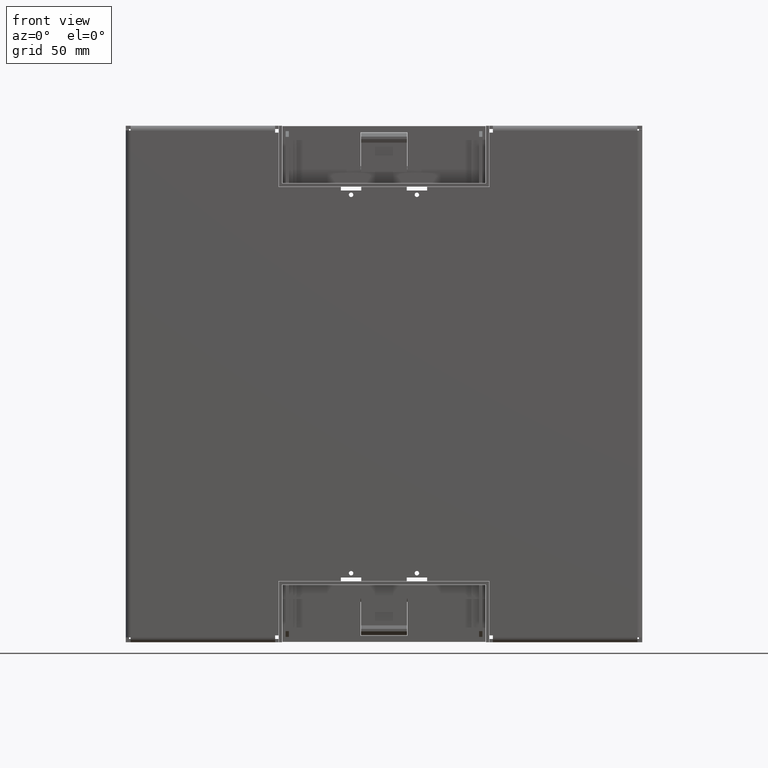
[diagram: clean part render]
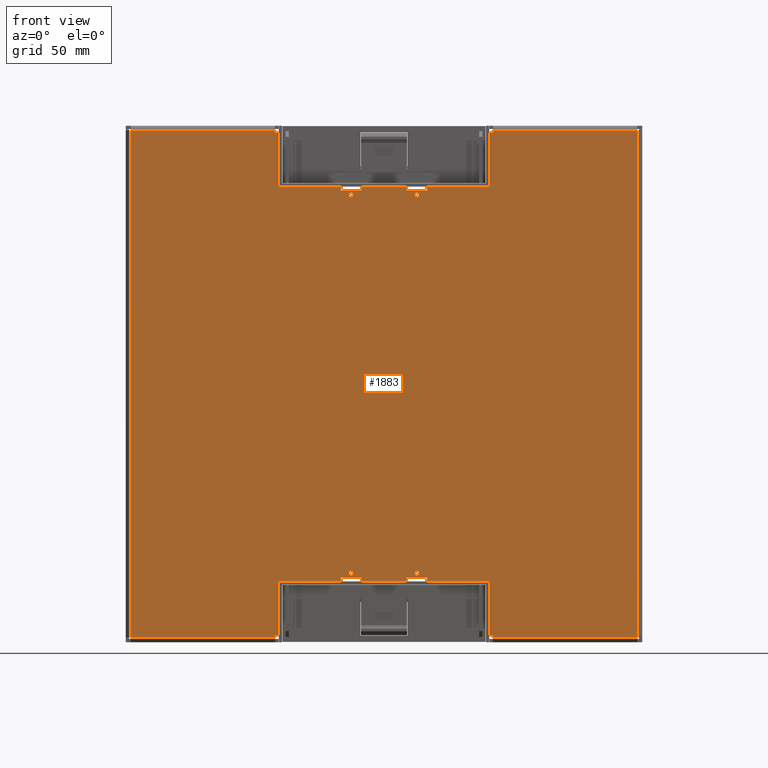
[diagram: same view with one face highlighted and labeled with its STEP entity id]
A machine part, front view. The second image highlights one B-rep face of the part: STEP entity #1883.
In plain terms, the highlighted planar face has unit normal (0, 1, 0).
Its self-contained STEP definition (entity closure, byte-faithful):
#300=DIRECTION('',(-1.E0,0.E0,0.E0));
#301=VECTOR('',#300,2.05E0);
#302=CARTESIAN_POINT('',(6.62E1,0.E0,-1.528E2));
#303=LINE('',#302,#301);
#304=DIRECTION('',(0.E0,0.E0,-1.E0));
#305=VECTOR('',#304,3.3E1);
#306=CARTESIAN_POINT('',(-6.415E1,0.E0,-1.198E2));
#307=LINE('',#306,#305);
#308=DIRECTION('',(-1.E0,0.E0,0.E0));
#309=VECTOR('',#308,2.05E0);
#310=CARTESIAN_POINT('',(-6.415E1,0.E0,-1.528E2));
#311=LINE('',#310,#309);
#312=DIRECTION('',(0.E0,0.E0,-1.E0));
#313=VECTOR('',#312,1.2E0);
#314=CARTESIAN_POINT('',(-6.62E1,0.E0,-1.528E2));
#315=LINE('',#314,#313);
#316=DIRECTION('',(0.E0,0.E0,-1.E0));
#317=VECTOR('',#316,3.3E1);
#318=CARTESIAN_POINT('',(-6.415E1,0.E0,1.528E2));
#319=LINE('',#318,#317);
#320=DIRECTION('',(1.E0,0.E0,0.E0));
#321=VECTOR('',#320,3.795E1);
#322=CARTESIAN_POINT('',(-6.415E1,0.E0,1.198E2));
#323=LINE('',#322,#321);
#324=DIRECTION('',(0.E0,0.E0,-1.E0));
#325=VECTOR('',#324,2.2E0);
#326=CARTESIAN_POINT('',(-2.62E1,0.E0,1.198E2));
#327=LINE('',#326,#325);
#328=DIRECTION('',(1.E0,0.E0,0.E0));
#329=VECTOR('',#328,1.24E1);
#330=CARTESIAN_POINT('',(-2.62E1,0.E0,1.176E2));
#331=LINE('',#330,#329);
#332=DIRECTION('',(0.E0,0.E0,1.E0));
#333=VECTOR('',#332,2.2E0);
#334=CARTESIAN_POINT('',(-1.38E1,0.E0,1.176E2));
#335=LINE('',#334,#333);
#336=DIRECTION('',(1.E0,0.E0,0.E0));
#337=VECTOR('',#336,2.76E1);
#338=CARTESIAN_POINT('',(-1.38E1,0.E0,1.198E2));
#339=LINE('',#338,#337);
#340=DIRECTION('',(0.E0,0.E0,-1.E0));
#341=VECTOR('',#340,2.2E0);
#342=CARTESIAN_POINT('',(1.38E1,0.E0,1.198E2));
#343=LINE('',#342,#341);
#344=DIRECTION('',(1.E0,0.E0,0.E0));
#345=VECTOR('',#344,1.24E1);
#346=CARTESIAN_POINT('',(1.38E1,0.E0,1.176E2));
#347=LINE('',#346,#345);
#348=DIRECTION('',(0.E0,0.E0,1.E0));
#349=VECTOR('',#348,2.2E0);
#350=CARTESIAN_POINT('',(2.62E1,0.E0,1.176E2));
#351=LINE('',#350,#349);
#352=DIRECTION('',(1.E0,0.E0,0.E0));
#353=VECTOR('',#352,3.795E1);
#354=CARTESIAN_POINT('',(2.62E1,0.E0,1.198E2));
#355=LINE('',#354,#353);
#356=DIRECTION('',(0.E0,0.E0,1.E0));
#357=VECTOR('',#356,1.2E0);
#358=CARTESIAN_POINT('',(6.62E1,0.E0,1.528E2));
#359=LINE('',#358,#357);
#360=CARTESIAN_POINT('',(-2.E1,0.E0,1.15E2));
#361=DIRECTION('',(0.E0,-1.E0,0.E0));
#362=DIRECTION('',(-1.E0,0.E0,0.E0));
#363=AXIS2_PLACEMENT_3D('',#360,#361,#362);
#365=CARTESIAN_POINT('',(-2.E1,0.E0,1.15E2));
#366=DIRECTION('',(0.E0,-1.E0,0.E0));
#367=DIRECTION('',(1.E0,0.E0,0.E0));
#368=AXIS2_PLACEMENT_3D('',#365,#366,#367);
#370=CARTESIAN_POINT('',(2.E1,0.E0,1.15E2));
#371=DIRECTION('',(0.E0,-1.E0,0.E0));
#372=DIRECTION('',(-1.E0,0.E0,0.E0));
#373=AXIS2_PLACEMENT_3D('',#370,#371,#372);
#375=CARTESIAN_POINT('',(2.E1,0.E0,1.15E2));
#376=DIRECTION('',(0.E0,-1.E0,0.E0));
#377=DIRECTION('',(1.E0,0.E0,0.E0));
#378=AXIS2_PLACEMENT_3D('',#375,#376,#377);
#380=CARTESIAN_POINT('',(2.E1,0.E0,-1.15E2));
#381=DIRECTION('',(0.E0,-1.E0,0.E0));
#382=DIRECTION('',(1.E0,0.E0,0.E0));
#383=AXIS2_PLACEMENT_3D('',#380,#381,#382);
#385=CARTESIAN_POINT('',(2.E1,0.E0,-1.15E2));
#386=DIRECTION('',(0.E0,-1.E0,0.E0));
#387=DIRECTION('',(-1.E0,0.E0,0.E0));
#388=AXIS2_PLACEMENT_3D('',#385,#386,#387);
#390=CARTESIAN_POINT('',(-2.E1,0.E0,-1.15E2));
#391=DIRECTION('',(0.E0,-1.E0,0.E0));
#392=DIRECTION('',(1.E0,0.E0,0.E0));
#393=AXIS2_PLACEMENT_3D('',#390,#391,#392);
#395=CARTESIAN_POINT('',(-2.E1,0.E0,-1.15E2));
#396=DIRECTION('',(0.E0,-1.E0,0.E0));
#397=DIRECTION('',(-1.E0,0.E0,0.E0));
#398=AXIS2_PLACEMENT_3D('',#395,#396,#397);
#400=DIRECTION('',(2.368475785867E-14,0.E0,-1.E0));
#401=VECTOR('',#400,1.2E0);
#402=CARTESIAN_POINT('',(6.62E1,0.E0,-1.528E2));
#403=LINE('',#402,#401);
#422=DIRECTION('',(1.E0,0.E0,0.E0));
#423=VECTOR('',#422,8.78E1);
#424=CARTESIAN_POINT('',(6.62E1,0.E0,-1.54E2));
#425=LINE('',#424,#423);
#462=DIRECTION('',(0.E0,0.E0,1.E0));
#463=VECTOR('',#462,3.08E2);
#464=CARTESIAN_POINT('',(1.54E2,0.E0,-1.54E2));
#465=LINE('',#464,#463);
#780=DIRECTION('',(-1.E0,0.E0,0.E0));
#781=VECTOR('',#780,8.78E1);
#782=CARTESIAN_POINT('',(1.54E2,0.E0,1.54E2));
#783=LINE('',#782,#781);
#806=DIRECTION('',(-1.E0,0.E0,0.E0));
#807=VECTOR('',#806,2.05E0);
#808=CARTESIAN_POINT('',(6.62E1,0.E0,1.528E2));
#809=LINE('',#808,#807);
#818=DIRECTION('',(0.E0,0.E0,-1.E0));
#819=VECTOR('',#818,3.3E1);
#820=CARTESIAN_POINT('',(6.415E1,0.E0,1.528E2));
#821=LINE('',#820,#819);
#902=DIRECTION('',(-1.E0,0.E0,0.E0));
#903=VECTOR('',#902,2.05E0);
#904=CARTESIAN_POINT('',(-6.415E1,0.E0,1.528E2));
#905=LINE('',#904,#903);
#910=DIRECTION('',(-2.368475785867E-14,0.E0,1.E0));
#911=VECTOR('',#910,1.2E0);
#912=CARTESIAN_POINT('',(-6.62E1,0.E0,1.528E2));
#913=LINE('',#912,#911);
#932=DIRECTION('',(-1.E0,0.E0,0.E0));
#933=VECTOR('',#932,8.78E1);
#934=CARTESIAN_POINT('',(-6.62E1,0.E0,1.54E2));
#935=LINE('',#934,#933);
#972=DIRECTION('',(0.E0,0.E0,-1.E0));
#973=VECTOR('',#972,3.08E2);
#974=CARTESIAN_POINT('',(-1.54E2,0.E0,1.54E2));
#975=LINE('',#974,#973);
#1044=DIRECTION('',(1.E0,0.E0,0.E0));
#1045=VECTOR('',#1044,8.78E1);
#1046=CARTESIAN_POINT('',(-1.54E2,0.E0,-1.54E2));
#1047=LINE('',#1046,#1045);
#1086=DIRECTION('',(1.E0,0.E0,0.E0));
#1087=VECTOR('',#1086,3.795E1);
#1088=CARTESIAN_POINT('',(-6.415E1,0.E0,-1.198E2));
#1089=LINE('',#1088,#1087);
#1094=DIRECTION('',(0.E0,0.E0,1.E0));
#1095=VECTOR('',#1094,2.2E0);
#1096=CARTESIAN_POINT('',(-2.62E1,0.E0,-1.198E2));
#1097=LINE('',#1096,#1095);
#1102=DIRECTION('',(1.E0,0.E0,0.E0));
#1103=VECTOR('',#1102,1.24E1);
#1104=CARTESIAN_POINT('',(-2.62E1,0.E0,-1.176E2));
#1105=LINE('',#1104,#1103);
#1110=DIRECTION('',(0.E0,0.E0,-1.E0));
#1111=VECTOR('',#1110,2.2E0);
#1112=CARTESIAN_POINT('',(-1.38E1,0.E0,-1.176E2));
#1113=LINE('',#1112,#1111);
#1118=DIRECTION('',(1.E0,0.E0,0.E0));
#1119=VECTOR('',#1118,2.76E1);
#1120=CARTESIAN_POINT('',(-1.38E1,0.E0,-1.198E2));
#1121=LINE('',#1120,#1119);
#1126=DIRECTION('',(0.E0,0.E0,1.E0));
#1127=VECTOR('',#1126,2.2E0);
#1128=CARTESIAN_POINT('',(1.38E1,0.E0,-1.198E2));
#1129=LINE('',#1128,#1127);
#1134=DIRECTION('',(1.E0,0.E0,0.E0));
#1135=VECTOR('',#1134,1.24E1);
#1136=CARTESIAN_POINT('',(1.38E1,0.E0,-1.176E2));
#1137=LINE('',#1136,#1135);
#1142=DIRECTION('',(0.E0,0.E0,-1.E0));
#1143=VECTOR('',#1142,2.2E0);
#1144=CARTESIAN_POINT('',(2.62E1,0.E0,-1.176E2));
#1145=LINE('',#1144,#1143);
#1150=DIRECTION('',(1.E0,0.E0,0.E0));
#1151=VECTOR('',#1150,3.795E1);
#1152=CARTESIAN_POINT('',(2.62E1,0.E0,-1.198E2));
#1153=LINE('',#1152,#1151);
#1162=DIRECTION('',(0.E0,0.E0,-1.E0));
#1163=VECTOR('',#1162,3.3E1);
#1164=CARTESIAN_POINT('',(6.415E1,0.E0,-1.198E2));
#1165=LINE('',#1164,#1163);
#1444=CARTESIAN_POINT('',(6.62E1,0.E0,-1.528E2));
#1445=CARTESIAN_POINT('',(6.62E1,0.E0,-1.54E2));
#1446=VERTEX_POINT('',#1444);
#1447=VERTEX_POINT('',#1445);
#1448=CARTESIAN_POINT('',(6.415E1,0.E0,-1.528E2));
#1449=VERTEX_POINT('',#1448);
#1450=CARTESIAN_POINT('',(6.415E1,0.E0,-1.198E2));
#1451=VERTEX_POINT('',#1450);
#1452=CARTESIAN_POINT('',(2.62E1,0.E0,-1.198E2));
#1453=VERTEX_POINT('',#1452);
#1454=CARTESIAN_POINT('',(2.62E1,0.E0,-1.176E2));
#1455=VERTEX_POINT('',#1454);
#1456=CARTESIAN_POINT('',(1.38E1,0.E0,-1.176E2));
#1457=VERTEX_POINT('',#1456);
#1458=CARTESIAN_POINT('',(1.38E1,0.E0,-1.198E2));
#1459=VERTEX_POINT('',#1458);
#1460=CARTESIAN_POINT('',(-1.38E1,0.E0,-1.198E2));
#1461=VERTEX_POINT('',#1460);
#1462=CARTESIAN_POINT('',(-1.38E1,0.E0,-1.176E2));
#1463=VERTEX_POINT('',#1462);
#1464=CARTESIAN_POINT('',(-2.62E1,0.E0,-1.176E2));
#1465=VERTEX_POINT('',#1464);
#1466=CARTESIAN_POINT('',(-2.62E1,0.E0,-1.198E2));
#1467=VERTEX_POINT('',#1466);
#1468=CARTESIAN_POINT('',(-6.415E1,0.E0,-1.198E2));
#1469=VERTEX_POINT('',#1468);
#1470=CARTESIAN_POINT('',(-6.415E1,0.E0,-1.528E2));
#1471=VERTEX_POINT('',#1470);
#1472=CARTESIAN_POINT('',(-6.62E1,0.E0,-1.528E2));
#1473=VERTEX_POINT('',#1472);
#1474=CARTESIAN_POINT('',(-6.62E1,0.E0,-1.54E2));
#1475=VERTEX_POINT('',#1474);
#1476=CARTESIAN_POINT('',(-1.54E2,0.E0,-1.54E2));
#1477=VERTEX_POINT('',#1476);
#1478=CARTESIAN_POINT('',(-1.54E2,0.E0,1.54E2));
#1479=VERTEX_POINT('',#1478);
#1480=CARTESIAN_POINT('',(-6.62E1,0.E0,1.54E2));
#1481=VERTEX_POINT('',#1480);
#1482=CARTESIAN_POINT('',(-6.62E1,0.E0,1.528E2));
#1483=VERTEX_POINT('',#1482);
#1484=CARTESIAN_POINT('',(-6.415E1,0.E0,1.528E2));
#1485=VERTEX_POINT('',#1484);
#1486=CARTESIAN_POINT('',(-6.415E1,0.E0,1.198E2));
#1487=VERTEX_POINT('',#1486);
#1488=CARTESIAN_POINT('',(-2.62E1,0.E0,1.198E2));
#1489=VERTEX_POINT('',#1488);
#1490=CARTESIAN_POINT('',(-2.62E1,0.E0,1.176E2));
#1491=VERTEX_POINT('',#1490);
#1492=CARTESIAN_POINT('',(-1.38E1,0.E0,1.176E2));
#1493=VERTEX_POINT('',#1492);
#1494=CARTESIAN_POINT('',(-1.38E1,0.E0,1.198E2));
#1495=VERTEX_POINT('',#1494);
#1496=CARTESIAN_POINT('',(1.38E1,0.E0,1.198E2));
#1497=VERTEX_POINT('',#1496);
#1498=CARTESIAN_POINT('',(1.38E1,0.E0,1.176E2));
#1499=VERTEX_POINT('',#1498);
#1500=CARTESIAN_POINT('',(2.62E1,0.E0,1.176E2));
#1501=VERTEX_POINT('',#1500);
#1502=CARTESIAN_POINT('',(2.62E1,0.E0,1.198E2));
#1503=VERTEX_POINT('',#1502);
#1504=CARTESIAN_POINT('',(6.415E1,0.E0,1.198E2));
#1505=VERTEX_POINT('',#1504);
#1506=CARTESIAN_POINT('',(6.415E1,0.E0,1.528E2));
#1507=VERTEX_POINT('',#1506);
#1508=CARTESIAN_POINT('',(6.62E1,0.E0,1.528E2));
#1509=VERTEX_POINT('',#1508);
#1510=CARTESIAN_POINT('',(6.62E1,0.E0,1.54E2));
#1511=VERTEX_POINT('',#1510);
#1512=CARTESIAN_POINT('',(1.54E2,0.E0,1.54E2));
#1513=VERTEX_POINT('',#1512);
#1514=CARTESIAN_POINT('',(1.54E2,0.E0,-1.54E2));
#1515=VERTEX_POINT('',#1514);
#1516=CARTESIAN_POINT('',(-2.135E1,0.E0,1.15E2));
#1517=CARTESIAN_POINT('',(-1.865E1,0.E0,1.15E2));
#1518=VERTEX_POINT('',#1516);
#1519=VERTEX_POINT('',#1517);
#1520=CARTESIAN_POINT('',(1.865E1,0.E0,1.15E2));
#1521=CARTESIAN_POINT('',(2.135E1,0.E0,1.15E2));
#1522=VERTEX_POINT('',#1520);
#1523=VERTEX_POINT('',#1521);
#1524=CARTESIAN_POINT('',(2.135E1,0.E0,-1.15E2));
#1525=CARTESIAN_POINT('',(1.865E1,0.E0,-1.15E2));
#1526=VERTEX_POINT('',#1524);
#1527=VERTEX_POINT('',#1525);
#1528=CARTESIAN_POINT('',(-1.865E1,0.E0,-1.15E2));
#1529=CARTESIAN_POINT('',(-2.135E1,0.E0,-1.15E2));
#1530=VERTEX_POINT('',#1528);
#1531=VERTEX_POINT('',#1529);
#1780=CARTESIAN_POINT('',(0.E0,0.E0,0.E0));
#1781=DIRECTION('',(0.E0,1.E0,0.E0));
#1782=DIRECTION('',(1.E0,0.E0,0.E0));
#1783=AXIS2_PLACEMENT_3D('',#1780,#1781,#1782);
#1784=PLANE('',#1783);
#1786=ORIENTED_EDGE('',*,*,#1785,.F.);
#1788=ORIENTED_EDGE('',*,*,#1787,.T.);
#1790=ORIENTED_EDGE('',*,*,#1789,.F.);
#1792=ORIENTED_EDGE('',*,*,#1791,.F.);
#1794=ORIENTED_EDGE('',*,*,#1793,.F.);
#1796=ORIENTED_EDGE('',*,*,#1795,.F.);
#1798=ORIENTED_EDGE('',*,*,#1797,.F.);
#1800=ORIENTED_EDGE('',*,*,#1799,.F.);
#1802=ORIENTED_EDGE('',*,*,#1801,.F.);
#1804=ORIENTED_EDGE('',*,*,#1803,.F.);
#1806=ORIENTED_EDGE('',*,*,#1805,.F.);
#1808=ORIENTED_EDGE('',*,*,#1807,.F.);
#1810=ORIENTED_EDGE('',*,*,#1809,.T.);
#1812=ORIENTED_EDGE('',*,*,#1811,.T.);
#1814=ORIENTED_EDGE('',*,*,#1813,.T.);
#1816=ORIENTED_EDGE('',*,*,#1815,.F.);
#1818=ORIENTED_EDGE('',*,*,#1817,.F.);
#1820=ORIENTED_EDGE('',*,*,#1819,.F.);
#1822=ORIENTED_EDGE('',*,*,#1821,.F.);
#1824=ORIENTED_EDGE('',*,*,#1823,.F.);
#1826=ORIENTED_EDGE('',*,*,#1825,.T.);
#1828=ORIENTED_EDGE('',*,*,#1827,.T.);
#1830=ORIENTED_EDGE('',*,*,#1829,.T.);
#1832=ORIENTED_EDGE('',*,*,#1831,.T.);
#1834=ORIENTED_EDGE('',*,*,#1833,.T.);
#1836=ORIENTED_EDGE('',*,*,#1835,.T.);
#1838=ORIENTED_EDGE('',*,*,#1837,.T.);
#1840=ORIENTED_EDGE('',*,*,#1839,.T.);
#1842=ORIENTED_EDGE('',*,*,#1841,.T.);
#1844=ORIENTED_EDGE('',*,*,#1843,.T.);
#1846=ORIENTED_EDGE('',*,*,#1845,.F.);
#1848=ORIENTED_EDGE('',*,*,#1847,.F.);
#1850=ORIENTED_EDGE('',*,*,#1849,.T.);
#1852=ORIENTED_EDGE('',*,*,#1851,.F.);
#1854=ORIENTED_EDGE('',*,*,#1853,.F.);
#1856=ORIENTED_EDGE('',*,*,#1855,.F.);
#1857=EDGE_LOOP('',(#1786,#1788,#1790,#1792,#1794,#1796,#1798,#1800,#1802,#1804,
#1806,#1808,#1810,#1812,#1814,#1816,#1818,#1820,#1822,#1824,#1826,#1828,#1830,
#1832,#1834,#1836,#1838,#1840,#1842,#1844,#1846,#1848,#1850,#1852,#1854,#1856));
#1858=FACE_OUTER_BOUND('',#1857,.F.);
#1860=ORIENTED_EDGE('',*,*,#1859,.T.);
#1862=ORIENTED_EDGE('',*,*,#1861,.T.);
#1863=EDGE_LOOP('',(#1860,#1862));
#1864=FACE_BOUND('',#1863,.F.);
#1866=ORIENTED_EDGE('',*,*,#1865,.T.);
#1868=ORIENTED_EDGE('',*,*,#1867,.T.);
#1869=EDGE_LOOP('',(#1866,#1868));
#1870=FACE_BOUND('',#1869,.F.);
#1872=ORIENTED_EDGE('',*,*,#1871,.T.);
#1874=ORIENTED_EDGE('',*,*,#1873,.T.);
#1875=EDGE_LOOP('',(#1872,#1874));
#1876=FACE_BOUND('',#1875,.F.);
#1878=ORIENTED_EDGE('',*,*,#1877,.T.);
#1880=ORIENTED_EDGE('',*,*,#1879,.T.);
#1881=EDGE_LOOP('',(#1878,#1880));
#1882=FACE_BOUND('',#1881,.F.);
#364=CIRCLE('',#363,1.35E0);
#369=CIRCLE('',#368,1.35E0);
#374=CIRCLE('',#373,1.35E0);
#379=CIRCLE('',#378,1.35E0);
#384=CIRCLE('',#383,1.35E0);
#389=CIRCLE('',#388,1.35E0);
#394=CIRCLE('',#393,1.35E0);
#399=CIRCLE('',#398,1.35E0);
#1785=EDGE_CURVE('',#1446,#1447,#403,.T.);
#1787=EDGE_CURVE('',#1446,#1449,#303,.T.);
#1789=EDGE_CURVE('',#1451,#1449,#1165,.T.);
#1791=EDGE_CURVE('',#1453,#1451,#1153,.T.);
#1793=EDGE_CURVE('',#1455,#1453,#1145,.T.);
#1795=EDGE_CURVE('',#1457,#1455,#1137,.T.);
#1797=EDGE_CURVE('',#1459,#1457,#1129,.T.);
#1799=EDGE_CURVE('',#1461,#1459,#1121,.T.);
#1801=EDGE_CURVE('',#1463,#1461,#1113,.T.);
#1803=EDGE_CURVE('',#1465,#1463,#1105,.T.);
#1805=EDGE_CURVE('',#1467,#1465,#1097,.T.);
#1807=EDGE_CURVE('',#1469,#1467,#1089,.T.);
#1809=EDGE_CURVE('',#1469,#1471,#307,.T.);
#1811=EDGE_CURVE('',#1471,#1473,#311,.T.);
#1813=EDGE_CURVE('',#1473,#1475,#315,.T.);
#1815=EDGE_CURVE('',#1477,#1475,#1047,.T.);
#1817=EDGE_CURVE('',#1479,#1477,#975,.T.);
#1819=EDGE_CURVE('',#1481,#1479,#935,.T.);
#1821=EDGE_CURVE('',#1483,#1481,#913,.T.);
#1823=EDGE_CURVE('',#1485,#1483,#905,.T.);
#1825=EDGE_CURVE('',#1485,#1487,#319,.T.);
#1827=EDGE_CURVE('',#1487,#1489,#323,.T.);
#1829=EDGE_CURVE('',#1489,#1491,#327,.T.);
#1831=EDGE_CURVE('',#1491,#1493,#331,.T.);
#1833=EDGE_CURVE('',#1493,#1495,#335,.T.);
#1835=EDGE_CURVE('',#1495,#1497,#339,.T.);
#1837=EDGE_CURVE('',#1497,#1499,#343,.T.);
#1839=EDGE_CURVE('',#1499,#1501,#347,.T.);
#1841=EDGE_CURVE('',#1501,#1503,#351,.T.);
#1843=EDGE_CURVE('',#1503,#1505,#355,.T.);
#1845=EDGE_CURVE('',#1507,#1505,#821,.T.);
#1847=EDGE_CURVE('',#1509,#1507,#809,.T.);
#1849=EDGE_CURVE('',#1509,#1511,#359,.T.);
#1851=EDGE_CURVE('',#1513,#1511,#783,.T.);
#1853=EDGE_CURVE('',#1515,#1513,#465,.T.);
#1855=EDGE_CURVE('',#1447,#1515,#425,.T.);
#1859=EDGE_CURVE('',#1518,#1519,#364,.T.);
#1861=EDGE_CURVE('',#1519,#1518,#369,.T.);
#1865=EDGE_CURVE('',#1522,#1523,#374,.T.);
#1867=EDGE_CURVE('',#1523,#1522,#379,.T.);
#1871=EDGE_CURVE('',#1526,#1527,#384,.T.);
#1873=EDGE_CURVE('',#1527,#1526,#389,.T.);
#1877=EDGE_CURVE('',#1530,#1531,#394,.T.);
#1879=EDGE_CURVE('',#1531,#1530,#399,.T.);
#1883=ADVANCED_FACE('',(#1858,#1864,#1870,#1876,#1882),#1784,.F.);